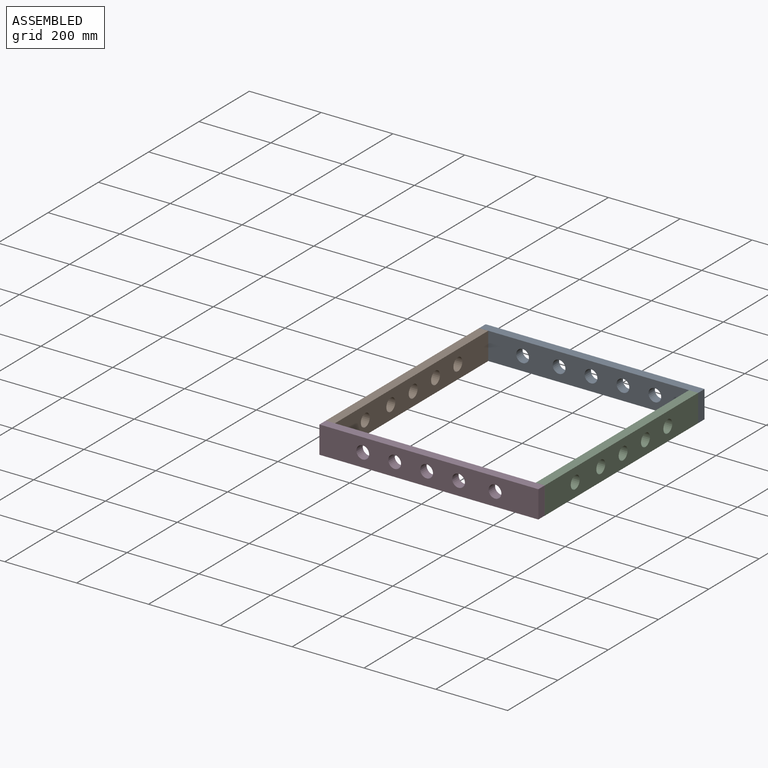
[diagram: assembled view]
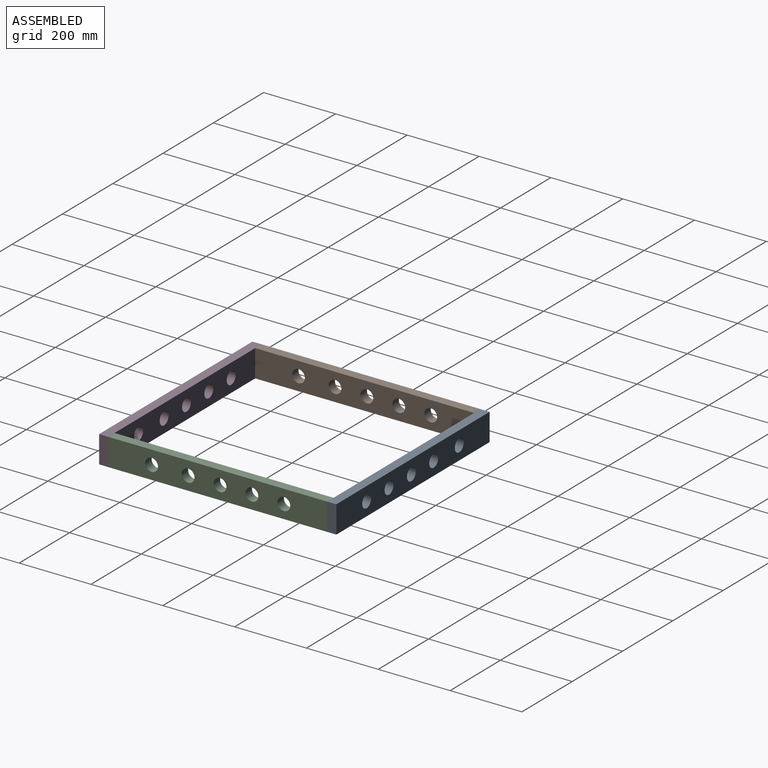
[diagram: assembled view, second angle]
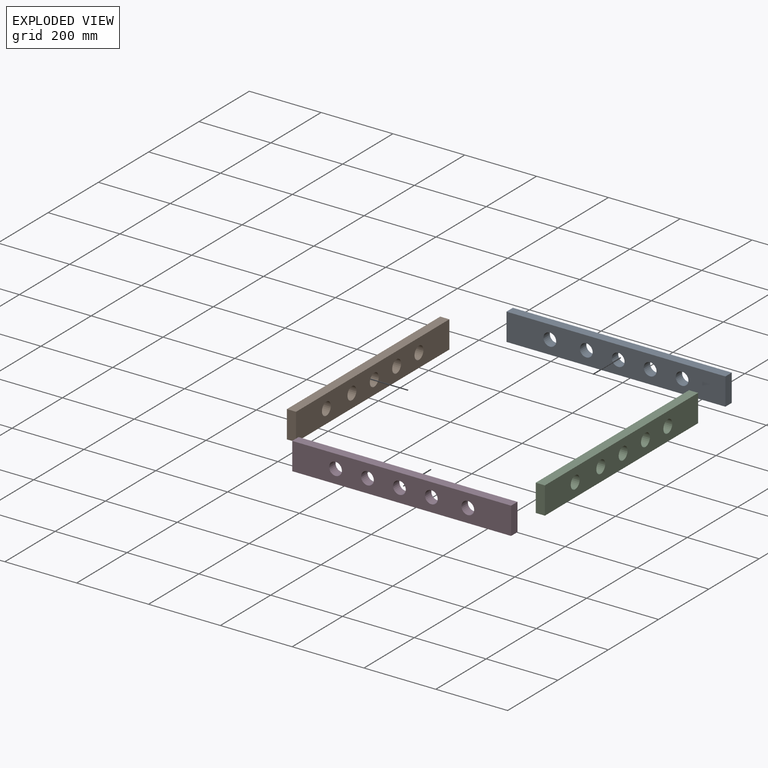
[diagram: exploded view]
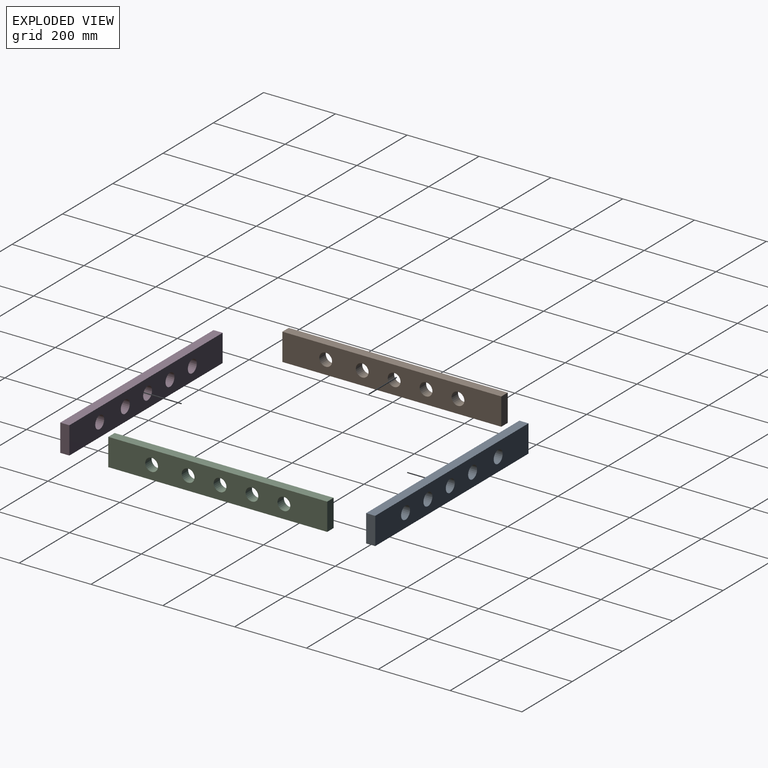
[diagram: exploded view, second angle]
ASSEMBLY  parts=4 mates=2
PART A: 11 faces, bbox 609.6x25.4x76.2 mm
  f0: plane 609.6x76.2mm, normal (0,1,0), area 41485.8mm2, adj f1,f3,f4,f5,f6,f7,f8,f9
  f1: plane 76.2x25.4mm, normal (-1,0,0), area 1935.5mm2, adj f0,f2,f4,f5
  f2: plane 609.6x76.2mm, normal (0,-1,0), area 41485.8mm2, adj f1,f3,f4,f5,f6,f7,f8,f9
  f3: plane 76.2x25.4mm, normal (1,0,0), area 1935.5mm2, adj f0,f2,f4,f5
  f4: plane 609.6x25.4mm, normal (0,0,1), area 15483.8mm2, adj f0,f1,f2,f3
  f5: plane 609.6x25.4mm, normal (0,0,-1), area 15483.8mm2, adj f0,f1,f2,f3
  f6: cylinder r=17.78mm len=35.56mm, axis (0,-1,0), area 2837.6mm2, adj f0,f2
  f7: cylinder r=17.78mm len=35.56mm, axis (0,-1,0), area 2837.6mm2, adj f0,f2
  f8: cylinder r=17.78mm len=35.56mm, axis (0,-1,0), area 2837.6mm2, adj f0,f2
  f9: cylinder r=17.78mm len=35.56mm, axis (0,-1,0), area 2837.6mm2, adj f0,f2
  f10: cylinder r=17.78mm len=35.56mm, axis (0,-1,0), area 2837.6mm2, adj f0,f2
PART B: same geometry as A
PART C: same geometry as A
PART D: same geometry as A
PLACE A t=(-126.46,121.33,-29.6)mm
PLACE B rot(axis=(0.71,0.71,0),180deg) t=(-101.31,-513.92,46.6)mm
PLACE C rot(axis=(0.71,0.71,0),180deg) t=(483.14,-513.67,46.6)mm
PLACE D rot(axis=(0,1,0),180deg) t=(482.89,-513.92,46.6)mm
MATE planar C.f3 <-> A.f2  axis (0,1,0) through (470.44,95.93,8.5)mm
MATE planar B.f1 <-> D.f0  axis (0,-1,0) through (-114.01,-513.92,8.5)mm
